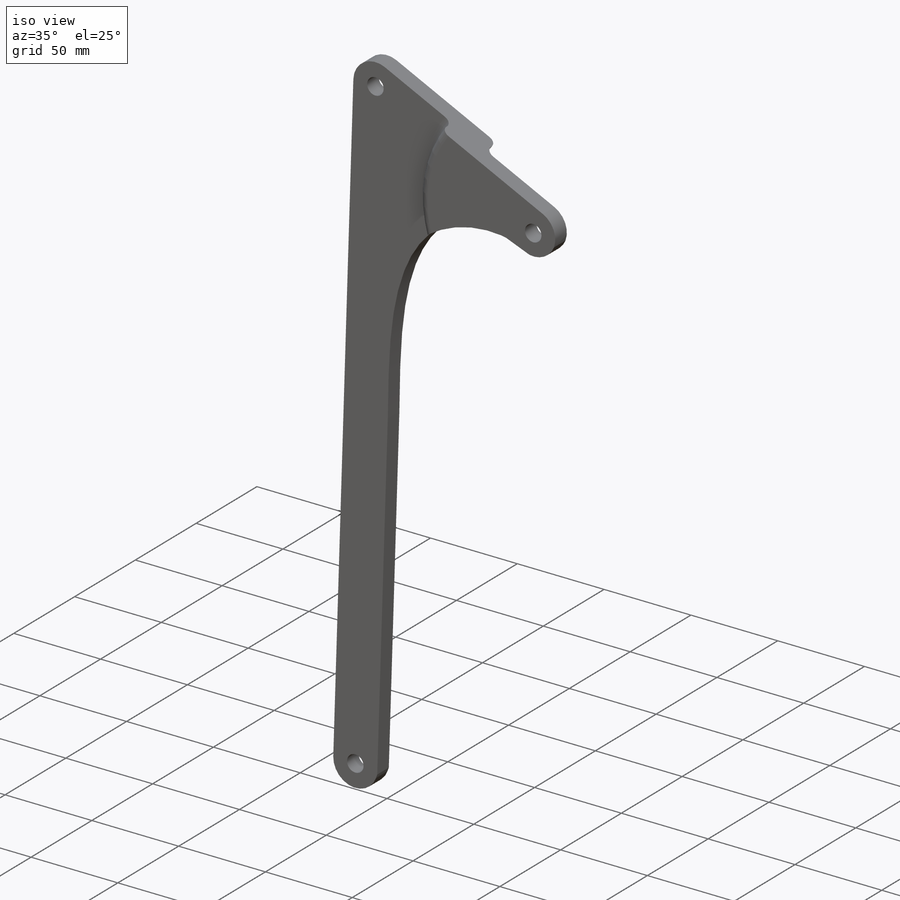
[diagram: iso view]
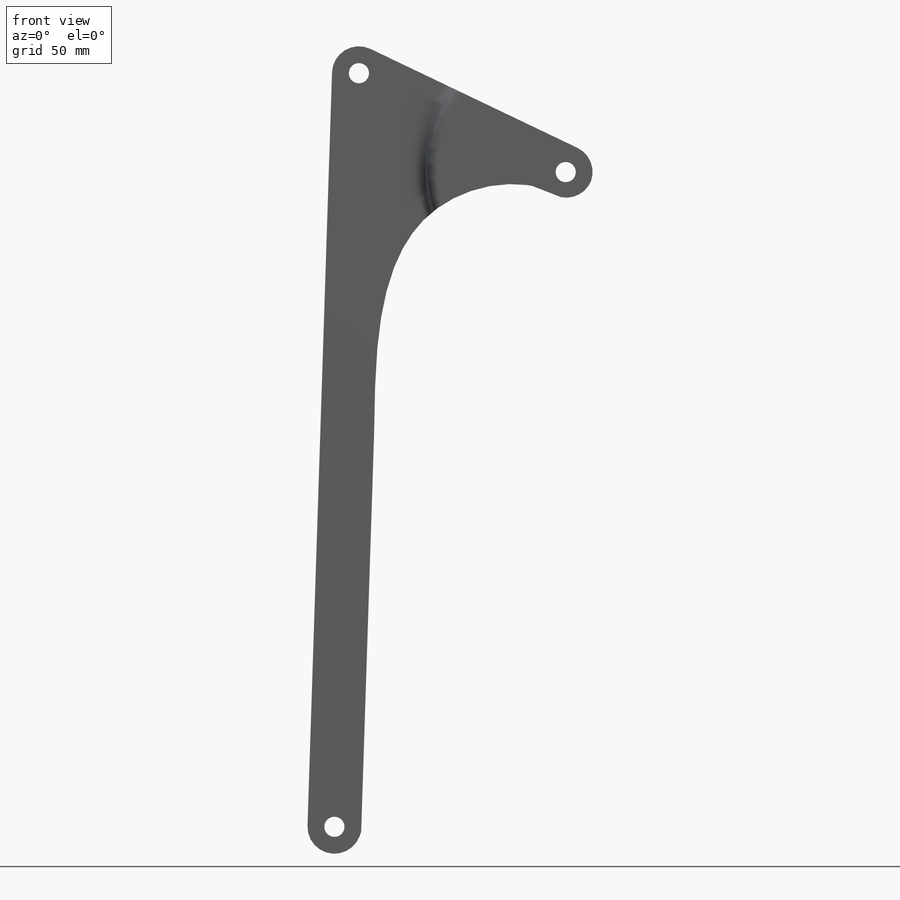
[diagram: front view]
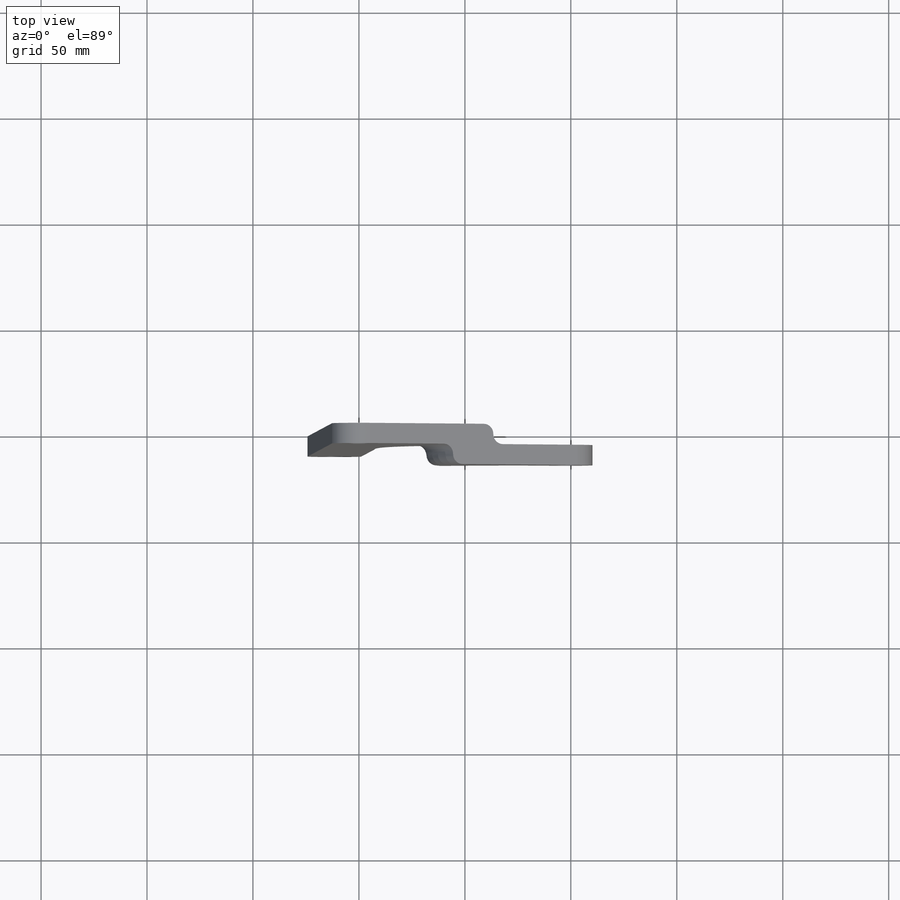
[diagram: top view]
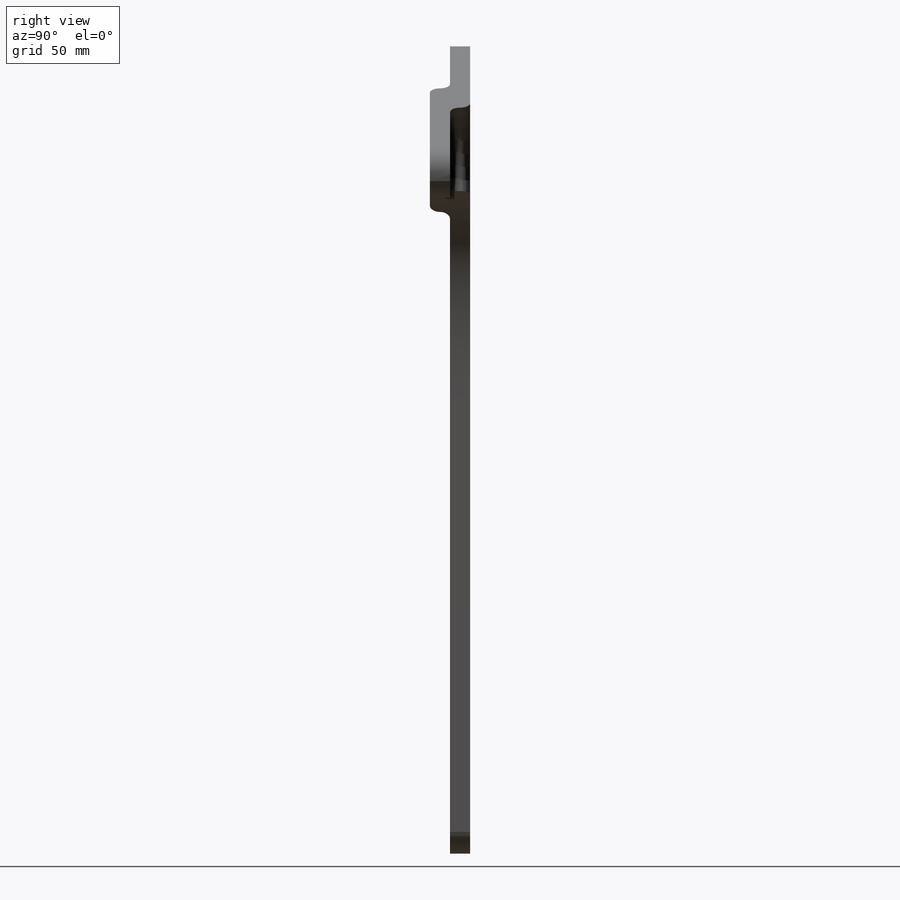
[diagram: right view]
SOLIDWORKS PART (.sldprt)
format: sldprt  version: not decoded by parser v0  size: 254,464 bytes
history: native  units: mm
features: sketch x5, fillet x4, extrude x2, material x1, hole x1, cut_extrude x1 (+13 scaffold rows collapsed)
feature tree (27):
  scaffold x13  (default folders/planes/origin — collapsed)
  material  "Material <not specified>"
  sketch  "Sketch1"  dims[c1.D6=~67.295647mm c1.D1=12.7mm c1.D2=12.7mm c2.D1=355.6mm c2.D2=108.1532mm c2.D3=327.66mm c2.D4=108.1532mm c3.D2=25.4mm c3.D3=12.7mm c3.D4=12.7mm c3.D5=12.7mm]
  extrude  "Boss-Extrude1"  Depth=9.525mm
  fillet  "Fillet1"  Radius=12.7mm
  fillet  "Fillet2"  Radius=12.7mm
  hole  "3/8 (0.375) Diameter Hole1"  Diameter=9.525mm Depth=9.525mm
  sketch  "Sketch3"
  sketch  "Sketch2"  dims[hole-wizard template sketch: 61 standard entries collapsed; hole parameters above]
  sketch  "Sketch4"  dims[D1=~8.859942mm]
  extrude  "Boss-Extrude2"  Depth=9.525mm
  sketch  "Sketch7"  dims[D1=66.04mm]
  cut_extrude  "Cut-Extrude2"  Depth=9.525mm
  fillet  "Fillet3"  Radius=4.7625mm
  fillet  "Fillet4"  Radius=4.7625mm
decode coverage: 12 of 13 modeling features carry decoded parameters
note: ~ marks probable driven/reference dimensions
note: suppression state not decoded; provenance and decode notes live in map.json
